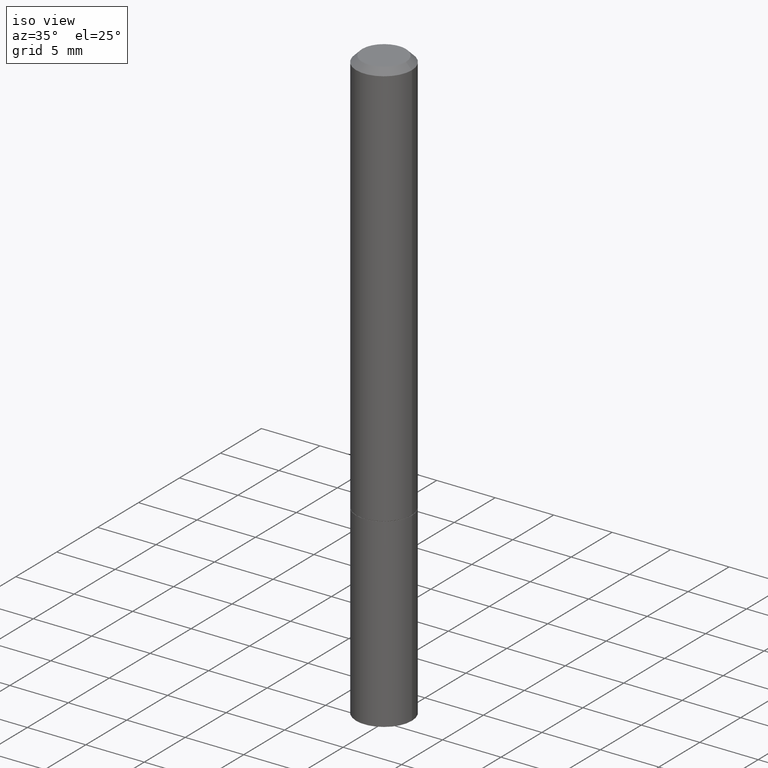
[diagram: clean part render]
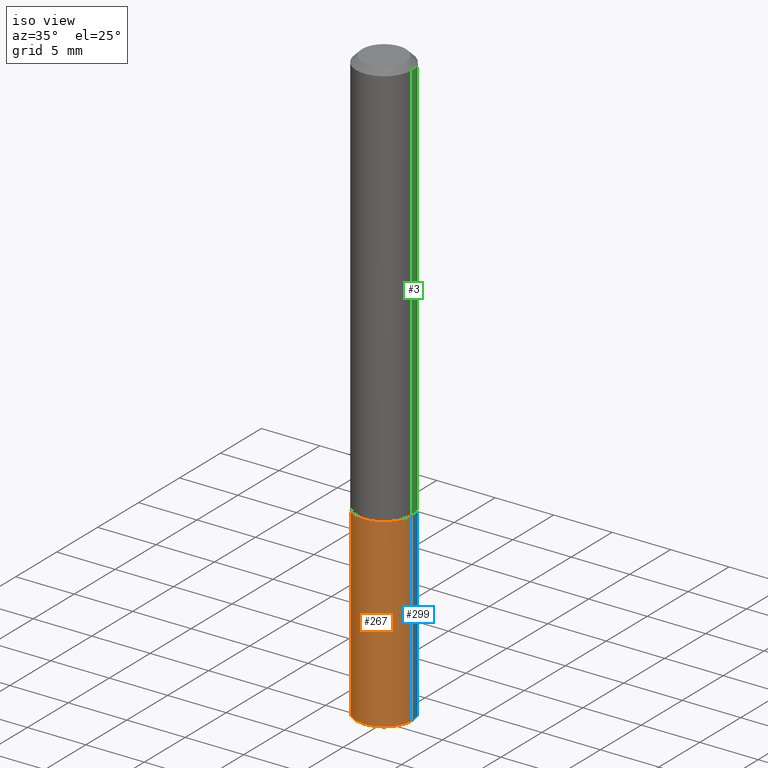
[diagram: same view with three faces highlighted in distinct colors, each labeled with its STEP entity id]
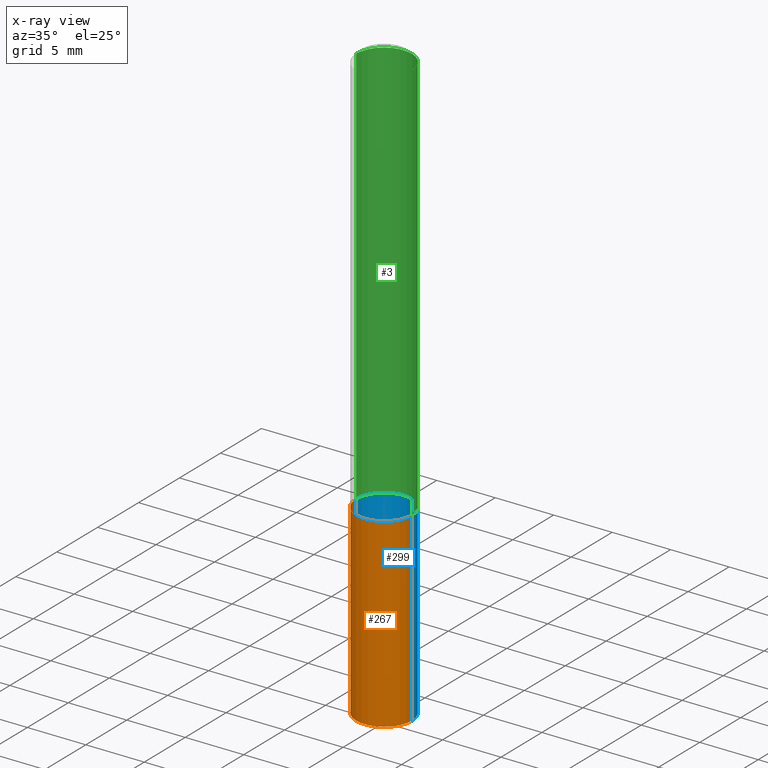
[diagram: x-ray of the same camera — body ghosted, the three highlighted faces saturated]
A machine part, iso view with three faces highlighted in distinct colors.
The next image is the same camera in x-ray (body ghosted, the three faces saturated) — at least one of them is partly hidden behind the body in this view.
Their STEP definitions:

[orange] entity #267 — the highlighted cylindrical surface (edge-blend (fillet) strip) has radius 2.3813 mm, axis along (-0, 0, 1).
#18 = LINE ( 'NONE', #19, #332 ) ;
#19 = CARTESIAN_POINT ( 'NONE',  ( -0.09375000000000001388, 6.661338147750940229E-16, -4.611501647113973995E-30 ) ) ;
#20 = VECTOR ( 'NONE', #230, 39.37007874015748143 ) ;
#23 = CARTESIAN_POINT ( 'NONE',  ( 0.09375000000000001388, -7.637615428719378669E-15, -2.000000000000000000 ) ) ;
#29 = DIRECTION ( 'NONE',  ( 1.000000000000000000, -6.982962677686265922E-15, 4.876176775795935793E-29 ) ) ;
#30 = LINE ( 'NONE', #195, #20 ) ;
#34 = AXIS2_PLACEMENT_3D ( 'NONE', #277, #272, #194 ) ;
#35 = ORIENTED_EDGE ( 'NONE', *, *, #104, .F. ) ;
#44 = EDGE_CURVE ( 'NONE', #206, #292, #18, .T. ) ;
#89 = DIRECTION ( 'NONE',  ( 1.000000000000000000, -6.982962677686261189E-15, 0.000000000000000000 ) ) ;
#104 = EDGE_CURVE ( 'NONE', #292, #261, #264, .T. ) ;
#145 = CARTESIAN_POINT ( 'NONE',  ( -0.09375000000000001388, -5.225740944522714123E-15, -1.375000000000000000 ) ) ;
#146 = CARTESIAN_POINT ( 'NONE',  ( -0.09375000000000001388, -5.225740944522714123E-15, -2.000000000000000000 ) ) ;
#171 = DIRECTION ( 'NONE',  ( -2.445468806185136597E-29, 3.491481338843145583E-15, 1.000000000000000000 ) ) ;
#173 = CARTESIAN_POINT ( 'NONE',  ( 4.890937612370273194E-29, -6.982962677686291165E-15, -2.000000000000000000 ) ) ;
#174 = CARTESIAN_POINT ( 'NONE',  ( 0.09375000000000001388, -5.455439591942412434E-15, -1.375000000000000000 ) ) ;
#176 = AXIS2_PLACEMENT_3D ( 'NONE', #336, #171, #29 ) ;
#194 = DIRECTION ( 'NONE',  ( 1.000000000000000000, -6.982962677686261189E-15, 0.000000000000000000 ) ) ;
#195 = CARTESIAN_POINT ( 'NONE',  ( 0.09375000000000001388, -6.546527510330875041E-16, 4.571415727308690506E-30 ) ) ;
#203 = CYLINDRICAL_SURFACE ( 'NONE', #176, 0.09375000000000001388 ) ;
#206 = VERTEX_POINT ( 'NONE', #146 ) ;
#211 = EDGE_CURVE ( 'NONE', #206, #339, #360, .T. ) ;
#230 = DIRECTION ( 'NONE',  ( -2.445468806185136877E-29, 3.491481338843145188E-15, 1.000000000000000000 ) ) ;
#261 = VERTEX_POINT ( 'NONE', #174 ) ;
#264 = CIRCLE ( 'NONE', #34, 0.09375000000000001388 ) ;
#267 = ADVANCED_FACE ( 'NONE', ( #284 ), #203, .T. ) ;
#272 = DIRECTION ( 'NONE',  ( -2.445468806185136597E-29, 3.491481338843145583E-15, 1.000000000000000000 ) ) ;
#277 = CARTESIAN_POINT ( 'NONE',  ( 3.362519608504562260E-29, -4.800786840909324930E-15, -1.375000000000000000 ) ) ;
#284 = FACE_OUTER_BOUND ( 'NONE', #295, .T. ) ;
#290 = ORIENTED_EDGE ( 'NONE', *, *, #344, .T. ) ;
#292 = VERTEX_POINT ( 'NONE', #145 ) ;
#295 = EDGE_LOOP ( 'NONE', ( #345, #351, #290, #35 ) ) ;
#308 = AXIS2_PLACEMENT_3D ( 'NONE', #173, #312, #89 ) ;
#312 = DIRECTION ( 'NONE',  ( -2.445468806185136597E-29, 3.491481338843145583E-15, 1.000000000000000000 ) ) ;
#332 = VECTOR ( 'NONE', #353, 39.37007874015748143 ) ;
#336 = CARTESIAN_POINT ( 'NONE',  ( 0.000000000000000000, 0.000000000000000000, 0.000000000000000000 ) ) ;
#339 = VERTEX_POINT ( 'NONE', #23 ) ;
#344 = EDGE_CURVE ( 'NONE', #339, #261, #30, .T. ) ;
#345 = ORIENTED_EDGE ( 'NONE', *, *, #44, .F. ) ;
#351 = ORIENTED_EDGE ( 'NONE', *, *, #211, .T. ) ;
#353 = DIRECTION ( 'NONE',  ( -2.445468806185136877E-29, 3.491481338843145188E-15, 1.000000000000000000 ) ) ;
#360 = CIRCLE ( 'NONE', #308, 0.09375000000000001388 ) ;

[blue] entity #299 — the highlighted cylindrical surface (edge-blend (fillet) strip) has radius 2.3813 mm, axis along (-0, 0, 1).
#4 = EDGE_LOOP ( 'NONE', ( #96, #232, #155, #316 ) ) ;
#16 = EDGE_CURVE ( 'NONE', #261, #292, #258, .T. ) ;
#18 = LINE ( 'NONE', #19, #332 ) ;
#19 = CARTESIAN_POINT ( 'NONE',  ( -0.09375000000000001388, 6.661338147750940229E-16, -4.611501647113973995E-30 ) ) ;
#20 = VECTOR ( 'NONE', #230, 39.37007874015748143 ) ;
#23 = CARTESIAN_POINT ( 'NONE',  ( 0.09375000000000001388, -7.637615428719378669E-15, -2.000000000000000000 ) ) ;
#30 = LINE ( 'NONE', #195, #20 ) ;
#44 = EDGE_CURVE ( 'NONE', #206, #292, #18, .T. ) ;
#55 = AXIS2_PLACEMENT_3D ( 'NONE', #88, #84, #226 ) ;
#73 = DIRECTION ( 'NONE',  ( -2.445468806185136597E-29, 3.491481338843145583E-15, 1.000000000000000000 ) ) ;
#79 = AXIS2_PLACEMENT_3D ( 'NONE', #184, #73, #107 ) ;
#83 = CARTESIAN_POINT ( 'NONE',  ( 4.890937612370273194E-29, -6.982962677686291165E-15, -2.000000000000000000 ) ) ;
#84 = DIRECTION ( 'NONE',  ( -2.445468806185136597E-29, 3.491481338843145583E-15, 1.000000000000000000 ) ) ;
#88 = CARTESIAN_POINT ( 'NONE',  ( 0.000000000000000000, 0.000000000000000000, 0.000000000000000000 ) ) ;
#96 = ORIENTED_EDGE ( 'NONE', *, *, #240, .T. ) ;
#107 = DIRECTION ( 'NONE',  ( 1.000000000000000000, -6.982962677686261189E-15, 0.000000000000000000 ) ) ;
#145 = CARTESIAN_POINT ( 'NONE',  ( -0.09375000000000001388, -5.225740944522714123E-15, -1.375000000000000000 ) ) ;
#146 = CARTESIAN_POINT ( 'NONE',  ( -0.09375000000000001388, -5.225740944522714123E-15, -2.000000000000000000 ) ) ;
#148 = AXIS2_PLACEMENT_3D ( 'NONE', #83, #250, #340 ) ;
#155 = ORIENTED_EDGE ( 'NONE', *, *, #16, .F. ) ;
#174 = CARTESIAN_POINT ( 'NONE',  ( 0.09375000000000001388, -5.455439591942412434E-15, -1.375000000000000000 ) ) ;
#184 = CARTESIAN_POINT ( 'NONE',  ( 3.362519608504562260E-29, -4.800786840909324930E-15, -1.375000000000000000 ) ) ;
#195 = CARTESIAN_POINT ( 'NONE',  ( 0.09375000000000001388, -6.546527510330875041E-16, 4.571415727308690506E-30 ) ) ;
#197 = FACE_OUTER_BOUND ( 'NONE', #4, .T. ) ;
#206 = VERTEX_POINT ( 'NONE', #146 ) ;
#226 = DIRECTION ( 'NONE',  ( 1.000000000000000000, -6.982962677686265922E-15, 4.876176775795935793E-29 ) ) ;
#230 = DIRECTION ( 'NONE',  ( -2.445468806185136877E-29, 3.491481338843145188E-15, 1.000000000000000000 ) ) ;
#232 = ORIENTED_EDGE ( 'NONE', *, *, #44, .T. ) ;
#240 = EDGE_CURVE ( 'NONE', #339, #206, #254, .T. ) ;
#250 = DIRECTION ( 'NONE',  ( -2.445468806185136597E-29, 3.491481338843145583E-15, 1.000000000000000000 ) ) ;
#254 = CIRCLE ( 'NONE', #148, 0.09375000000000001388 ) ;
#258 = CIRCLE ( 'NONE', #79, 0.09375000000000001388 ) ;
#261 = VERTEX_POINT ( 'NONE', #174 ) ;
#292 = VERTEX_POINT ( 'NONE', #145 ) ;
#299 = ADVANCED_FACE ( 'NONE', ( #197 ), #310, .T. ) ;
#310 = CYLINDRICAL_SURFACE ( 'NONE', #55, 0.09375000000000001388 ) ;
#316 = ORIENTED_EDGE ( 'NONE', *, *, #344, .F. ) ;
#332 = VECTOR ( 'NONE', #353, 39.37007874015748143 ) ;
#339 = VERTEX_POINT ( 'NONE', #23 ) ;
#340 = DIRECTION ( 'NONE',  ( 1.000000000000000000, -6.982962677686261189E-15, 0.000000000000000000 ) ) ;
#344 = EDGE_CURVE ( 'NONE', #339, #261, #30, .T. ) ;
#353 = DIRECTION ( 'NONE',  ( -2.445468806185136877E-29, 3.491481338843145188E-15, 1.000000000000000000 ) ) ;

[green] entity #3 — the highlighted cylindrical surface (edge-blend (fillet) strip) has radius 2.3812 mm, axis along (-0, 0, 1).
#3 = ADVANCED_FACE ( 'NONE', ( #36 ), #212, .T. ) ;
#36 = FACE_OUTER_BOUND ( 'NONE', #62, .T. ) ;
#37 = EDGE_CURVE ( 'NONE', #68, #130, #305, .T. ) ;
#51 = DIRECTION ( 'NONE',  ( -2.445468806185136597E-29, 3.491481338843145583E-15, 1.000000000000000000 ) ) ;
#59 = CIRCLE ( 'NONE', #118, 0.09374999999999981959 ) ;
#61 = DIRECTION ( 'NONE',  ( -2.445468806185136877E-29, 3.491481338843145188E-15, 1.000000000000000000 ) ) ;
#62 = EDGE_LOOP ( 'NONE', ( #236, #320, #151, #204 ) ) ;
#68 = VERTEX_POINT ( 'NONE', #331 ) ;
#74 = EDGE_CURVE ( 'NONE', #68, #147, #337, .T. ) ;
#86 = CARTESIAN_POINT ( 'NONE',  ( -0.09374999999999981959, 5.848231242562232198E-16, -0.02000000000000003858 ) ) ;
#90 = AXIS2_PLACEMENT_3D ( 'NONE', #359, #112, #141 ) ;
#92 = DIRECTION ( 'NONE',  ( -2.445468806185136597E-29, 3.491481338843145583E-15, 1.000000000000000000 ) ) ;
#103 = CARTESIAN_POINT ( 'NONE',  ( -0.09375000000000001388, -1.767428678398576122E-15, -1.373999999999999888 ) ) ;
#108 = DIRECTION ( 'NONE',  ( 1.000000000000000000, -6.982962677686267499E-15, 0.000000000000000000 ) ) ;
#112 = DIRECTION ( 'NONE',  ( -2.445468806185136597E-29, 3.491481338843145583E-15, 1.000000000000000000 ) ) ;
#118 = AXIS2_PLACEMENT_3D ( 'NONE', #214, #51, #108 ) ;
#130 = VERTEX_POINT ( 'NONE', #245 ) ;
#141 = DIRECTION ( 'NONE',  ( 1.000000000000000000, -6.982962677686261189E-15, 0.000000000000000000 ) ) ;
#147 = VERTEX_POINT ( 'NONE', #103 ) ;
#151 = ORIENTED_EDGE ( 'NONE', *, *, #166, .F. ) ;
#166 = EDGE_CURVE ( 'NONE', #130, #317, #59, .T. ) ;
#200 = LINE ( 'NONE', #309, #241 ) ;
#204 = ORIENTED_EDGE ( 'NONE', *, *, #37, .F. ) ;
#212 = CYLINDRICAL_SURFACE ( 'NONE', #285, 0.09374999999999991673 ) ;
#214 = CARTESIAN_POINT ( 'NONE',  ( 4.890937612370282792E-31, -6.982962677686303935E-17, -0.02000000000000003858 ) ) ;
#217 = DIRECTION ( 'NONE',  ( -2.445468806185136877E-29, 3.491481338843145188E-15, 1.000000000000000000 ) ) ;
#236 = ORIENTED_EDGE ( 'NONE', *, *, #74, .T. ) ;
#238 = CARTESIAN_POINT ( 'NONE',  ( 0.000000000000000000, 0.000000000000000000, 0.000000000000000000 ) ) ;
#241 = VECTOR ( 'NONE', #61, 39.37007874015748143 ) ;
#245 = CARTESIAN_POINT ( 'NONE',  ( 0.09374999999999981959, -7.130013140679429031E-16, -0.02000000000000003858 ) ) ;
#285 = AXIS2_PLACEMENT_3D ( 'NONE', #238, #92, #322 ) ;
#291 = VECTOR ( 'NONE', #217, 39.37007874015748143 ) ;
#304 = EDGE_CURVE ( 'NONE', #147, #317, #200, .T. ) ;
#305 = LINE ( 'NONE', #334, #291 ) ;
#309 = CARTESIAN_POINT ( 'NONE',  ( -0.09374999999999991673, 6.661338147750933326E-16, -4.611501647113969791E-30 ) ) ;
#317 = VERTEX_POINT ( 'NONE', #86 ) ;
#320 = ORIENTED_EDGE ( 'NONE', *, *, #304, .T. ) ;
#322 = DIRECTION ( 'NONE',  ( 1.000000000000000000, -6.982962677686266711E-15, 4.876176775795935793E-29 ) ) ;
#331 = CARTESIAN_POINT ( 'NONE',  ( 0.09375000000000001388, -5.451948110603568638E-15, -1.373999999999999888 ) ) ;
#334 = CARTESIAN_POINT ( 'NONE',  ( 0.09374999999999991673, -6.546527510330869125E-16, 4.571415727308685602E-30 ) ) ;
#337 = CIRCLE ( 'NONE', #90, 0.09375000000000001388 ) ;
#359 = CARTESIAN_POINT ( 'NONE',  ( 3.360074139698377778E-29, -4.797295359570481134E-15, -1.373999999999999888 ) ) ;